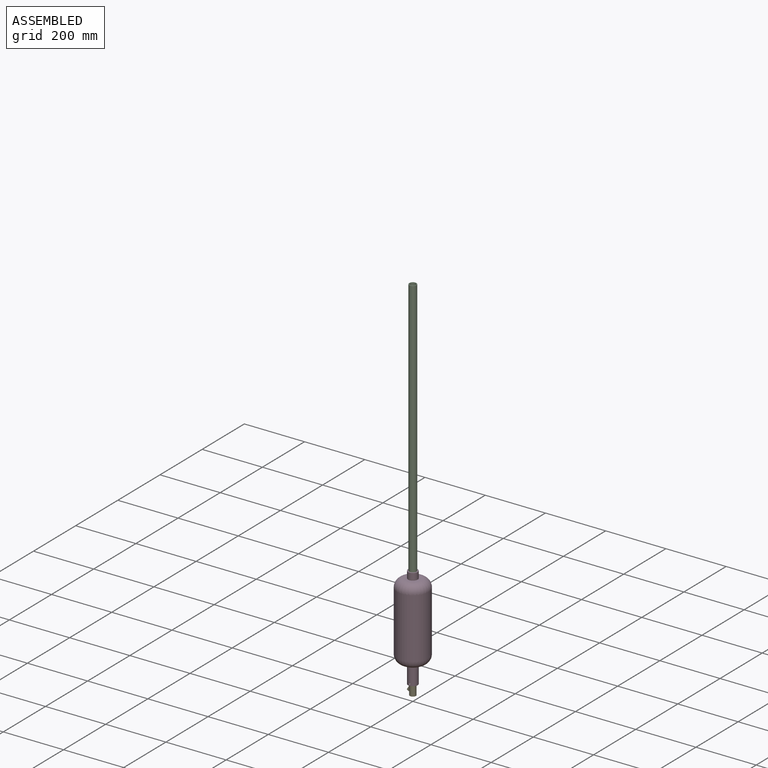
[diagram: assembled view]
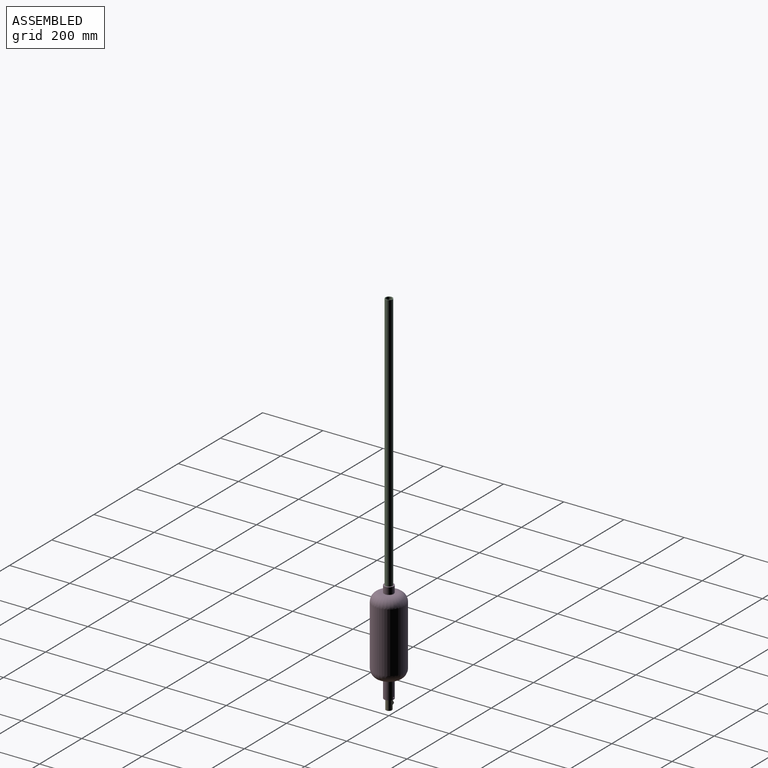
[diagram: assembled view, second angle]
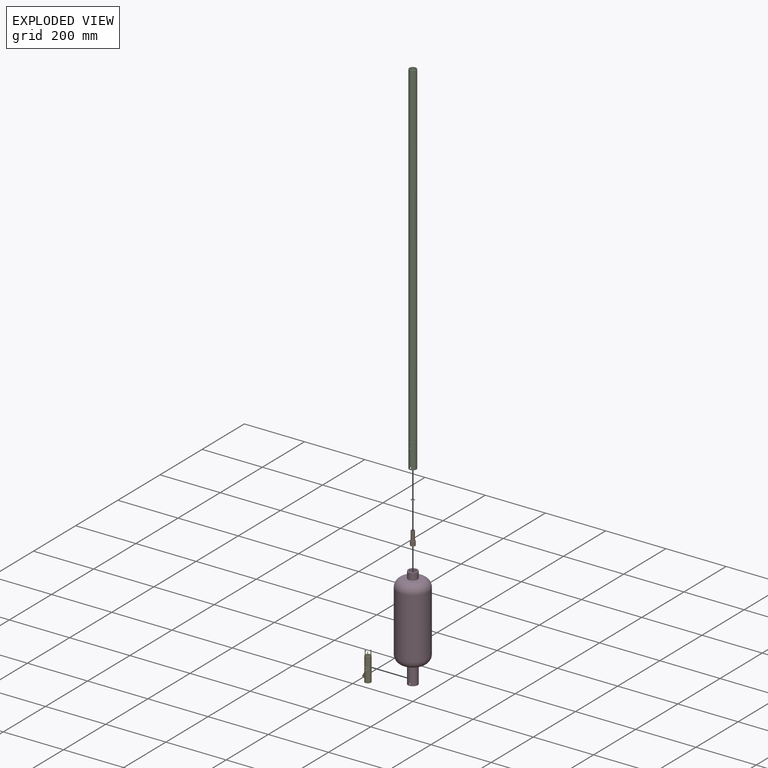
[diagram: exploded view]
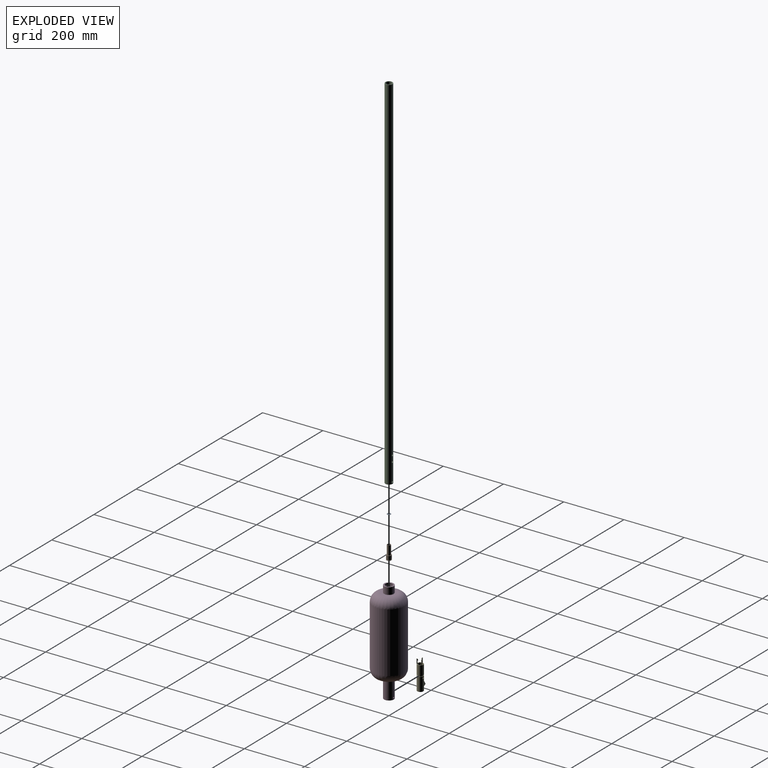
[diagram: exploded view, second angle]
ASSEMBLY  parts=5 mates=7
PART A: 4 faces, bbox 12x12x0.5 mm
  f0: cylinder r=6mm len=12mm, axis (0,0,1), area 18.8mm2, adj f1,f2
  f1: plane 12x12mm, normal (0,0,-1), area 110mm2, adj f0,f3
  f2: plane 12x12mm, normal (0,0,1), area 110mm2, adj f0,f3
  f3: cylinder r=1mm len=2mm, axis (0,0,-1), area 3.1mm2, adj f1,f2
PART B: 17 faces, bbox 16x16x45 mm
  f0: cylinder r=8mm len=16mm, axis (0,0,-1), area 598.2mm2, adj f2,f14
  f1: cylinder r=8mm len=16mm, axis (0,0,-1), area 100.5mm2, adj f3,f16
  f2: plane 16x16mm, normal (0,0,1), area 88mm2, adj f0,f7
  f3: plane 16x16mm, normal (0,0,-1), area 88mm2, adj f1,f4
  f4: cylinder r=6mm len=13mm, axis (0,0,-1), area 490.1mm2, adj f3,f5
  f5: plane 12x12mm, normal (0,0,-1), area 106mm2, adj f4,f10,f11,f12,f13
  f6: cylinder r=5mm len=30mm, axis (0,0,-1), area 942.5mm2, adj f8,f9
  f7: cylinder r=6mm len=30mm, axis (0,0,-1), area 1131mm2, adj f2,f8
  f8: plane 12x12mm, normal (0,0,1), area 34.6mm2, adj f6,f7
  f9: plane 10x10mm, normal (0,0,1), area 71.5mm2, adj f6,f10,f11,f12,f13
  f10: cylinder r=0.75mm len=2mm, axis (0,0,1), area 9.4mm2, adj f5,f9
  f11: cylinder r=0.75mm len=2mm, axis (0,0,1), area 9.4mm2, adj f5,f9
  f12: cylinder r=0.75mm len=2mm, axis (0,0,1), area 9.4mm2, adj f5,f9
  f13: cylinder r=0.75mm len=2mm, axis (0,0,1), area 9.4mm2, adj f5,f9
  f14: plane 16x16mm, normal (0,0,-1), area 38.2mm2, adj f0,f15
  f15: cylinder r=7.2mm len=14.4mm, axis (0,0,-1), area 49.8mm2, adj f14,f16
  f16: plane 16x16mm, normal (0,0,1), area 38.2mm2, adj f1,f15
PART C: 10 faces, bbox 24x24x1200 mm
  f0: plane 24x24mm, normal (0,0,-1), area 138.2mm2, adj f2,f3
  f1: plane 24x24mm, normal (0,0,1), area 138.2mm2, adj f2,f3
  f2: cylinder r=12mm len=1200mm, axis (0,0,1), area 90321mm2, adj f0,f1,f4,f5,f6,f7,f8,f9
  f3: cylinder r=10mm len=1200mm, axis (0,0,1), area 75240.9mm2, adj f0,f1,f4,f5,f6,f7,f8,f9
  f4: cylinder r=3mm len=6mm, axis (1,0,0), area 38.4mm2, adj f2,f3
  f5: cylinder r=3mm len=6mm, axis (1,0,0), area 38.4mm2, adj f2,f3
  f6: cylinder r=3mm len=6mm, axis (1,0,0), area 38.4mm2, adj f2,f3
  f7: cylinder r=3mm len=6mm, axis (1,0,0), area 38.4mm2, adj f2,f3
  f8: cylinder r=2.6mm len=5.2mm, axis (1,0,0), area 33.1mm2, adj f2,f3
  f9: cylinder r=2.6mm len=5.2mm, axis (1,0,0), area 33.1mm2, adj f2,f3
PART D: 26 faces, bbox 108.2x108.2x340 mm
  f0: cylinder r=12mm len=40mm, axis (0,0,-1), area 2973.3mm2, adj f2,f11,f12,f17
  f1: plane 32x32mm, normal (0,0,1), area 351.9mm2, adj f8,f10
  f2: plane 32x32mm, normal (0,0,-1), area 351.9mm2, adj f0,f9
  f3: plane 50x50mm, normal (0,0,-1), area 1159.2mm2, adj f4,f9
  f4: torus R=25mm, axis (0,0,1), area 11242.4mm2, adj f3,f7
  f5: plane 50x50mm, normal (0,0,1), area 1159.2mm2, adj f6,f10
  f6: torus R=25mm, axis (0,0,1), area 11242.4mm2, adj f5,f7
  f7: cylinder r=52mm len=200mm, axis (0,0,-1), area 65345.1mm2, adj f4,f6
  f8: cylinder r=12mm len=24mm, axis (0,0,-1), area 377mm2, adj f1,f13
  f9: cylinder r=16mm len=63mm, axis (0,0,-1), area 6290.7mm2, adj f2,f3,f11,f12
  f10: cylinder r=16mm len=32mm, axis (0,0,-1), area 2312.2mm2, adj f1,f5
  f11: cylinder r=2.6mm len=5.2mm, axis (1,0,0), area 65.9mm2, adj f0,f9
  f12: cylinder r=2.6mm len=5.2mm, axis (1,0,0), area 65.9mm2, adj f0,f9
  f13: plane 27.2x27.2mm, normal (0,0,-1), area 128.7mm2, adj f8,f15
  f14: plane 27.2x27.2mm, normal (0,0,1), area 128.7mm2, adj f15,f25
  f15: cylinder r=13.6mm len=27.2mm, axis (0,0,1), area 179.4mm2, adj f13,f14
  f16: plane 27.2x27.2mm, normal (0,0,-1), area 128.7mm2, adj f18,f21
  f17: plane 27.2x27.2mm, normal (0,0,1), area 128.7mm2, adj f0,f18
  f18: cylinder r=13.6mm len=27.2mm, axis (0,0,1), area 179.4mm2, adj f16,f17
  f19: torus R=25mm, axis (0,0,1), area 10095.5mm2, adj f20,f22
  f20: plane 50x50mm, normal (0,0,1), area 1511.1mm2, adj f19,f21
  f21: cylinder r=12mm len=24mm, axis (0,0,-1), area 1726.6mm2, adj f16,f20
  f22: cylinder r=50mm len=200mm, axis (0,0,-1), area 62831.9mm2, adj f19,f23
  f23: torus R=25mm, axis (0,0,1), area 10095.5mm2, adj f22,f24
  f24: plane 50x50mm, normal (0,0,-1), area 1511.1mm2, adj f23,f25
  f25: cylinder r=12mm len=24mm, axis (0,0,-1), area 1349.6mm2, adj f14,f24
PART E: 46 faces, bbox 26x20x95 mm
  f0: cylinder r=10mm len=45.8mm, axis (0,0,-1), area 2642mm2, adj f26,f27,f28,f30,f31,f32,f33,f41
  f1: plane 4x2.88mm, normal (-0.5,0,-0.87), area 9.4mm2, adj f29,f34,f36,f37,f38,f39
  f2: plane 16.38x5.41mm, normal (0,0,1), area 34.6mm2, adj f4,f6,f13,f24
  f3: plane 14.19x9.3mm, normal (0,0,1), area 34.6mm2, adj f4,f6,f18,f25
  f4: cylinder r=10mm len=47mm, axis (0,0,-1), area 2089.2mm2, adj f2,f3,f5,f11,f12,f13,f17,f18
  f5: plane 14.19x9.3mm, normal (0,0,1), area 34.6mm2, adj f4,f6,f12,f19
  f6: cylinder r=8mm len=38mm, axis (0,0,1), area 1449.3mm2, adj f2,f3,f5,f7,f8,f12,f13,f14
  f7: plane 16x16mm, normal (0,0,1), area 197.9mm2, adj f6,f42
  f8: plane 2.34x2.05mm, normal (0,0,-1), area 2.4mm2, adj f6,f9,f12,f13
  f9: cylinder r=6mm len=1.54mm, axis (0,0,1), area 1.6mm2, adj f8,f10,f12,f13
  f10: cone r=8mm half-angle=30deg, axis (0,0,1), area 4.9mm2, adj f9,f11,f12,f13
  f11: plane 2.51x2.36mm, normal (0,0,1), area 3.1mm2, adj f4,f10,f12,f13
  f12: plane 15x3.63mm, normal (-0.91,-0.42,0), area 36.5mm2, adj f4,f5,f6,f8,f9,f10,f11
  f13: plane 15x3.28mm, normal (0.82,0.57,0), area 36.5mm2, adj f2,f4,f6,f8,f9,f10,f11
  f14: plane 2.02x1.39mm, normal (0,0,-1), area 2.4mm2, adj f6,f15,f18,f19
  f15: cylinder r=6mm len=1.54mm, axis (0,0,1), area 1.6mm2, adj f14,f16,f18,f19
  f16: cone r=8mm half-angle=30deg, axis (0,0,1), area 4.9mm2, adj f15,f17,f18,f19
  f17: plane 2.03x1.74mm, normal (0,0,1), area 3.1mm2, adj f4,f16,f18,f19
  f18: plane 15x3.98mm, normal (0.09,1,0), area 36.5mm2, adj f3,f4,f6,f14,f15,f16,f17
  f19: plane 15x3.98mm, normal (0.09,-1,0), area 36.5mm2, adj f4,f5,f6,f14,f15,f16,f17
  f20: plane 2.34x2.05mm, normal (0,0,-1), area 2.4mm2, adj f6,f21,f24,f25
  f21: cylinder r=6mm len=1.54mm, axis (0,0,1), area 1.6mm2, adj f20,f22,f24,f25
  f22: cone r=8mm half-angle=30deg, axis (0,0,1), area 4.9mm2, adj f21,f23,f24,f25
  f23: plane 2.51x2.36mm, normal (0,0,1), area 3.1mm2, adj f4,f22,f24,f25
  f24: plane 15x3.28mm, normal (0.82,-0.57,0), area 36.5mm2, adj f2,f4,f6,f20,f21,f22,f23
  f25: plane 15x3.63mm, normal (-0.91,0.42,0), area 36.5mm2, adj f3,f4,f6,f20,f21,f22,f23
  f26: plane 20x20mm, normal (0,0,-1), area 314.2mm2, adj f0
  f27: plane 17.79x7.96mm, normal (0,-1,0), area 72mm2, adj f0,f30,f31,f33
  f28: plane 17.79x7.96mm, normal (0,1,0), area 72mm2, adj f0,f31,f32,f33
  f29: cylinder r=2mm len=23.65mm, axis (0.5,0,0.87), area 273.5mm2, adj f1,f33,f34,f35
  f30: plane 1.79x1.72mm, normal (0.87,0,-0.5), area 1.6mm2, adj f0,f27,f33
  f31: plane 13.79x12mm, normal (-0.87,0,0.5), area 158.4mm2, adj f0,f27,f28,f33
  f32: plane 1.79x1.72mm, normal (0.87,0,-0.5), area 1.6mm2, adj f0,f28,f33
  f33: plane 12x6.93mm, normal (-0.5,0,-0.87), area 77mm2, adj f0,f27,f28,f29,f30,f31,f32
  f34: plane 10.39x6mm, normal (0.87,0,-0.5), area 29.7mm2, adj f1,f29,f35,f42
  f35: plane 3x0.59mm, normal (-0.5,0,-0.87), area 1.4mm2, adj f29,f34
  f36: plane 10.69x6.52mm, normal (0,1,0), area 7.2mm2, adj f1,f37,f39,f40
  f37: plane 10.39x6mm, normal (0.87,0,-0.5), area 36mm2, adj f1,f36,f38,f40
  f38: plane 10.69x6.52mm, normal (0,-1,0), area 7.2mm2, adj f1,f37,f39,f40
  f39: plane 10.39x6mm, normal (-0.87,0,0.5), area 36mm2, adj f1,f36,f38,f40
  f40: plane 3x0.52mm, normal (-0.5,0,-0.87), area 1.8mm2, adj f36,f37,f38,f39
  f41: cylinder r=2.6mm len=20mm, axis (0,-1,0), area 321.1mm2, adj f0
  f42: cylinder r=1mm len=24.77mm, axis (0,0,1), area 144.6mm2, adj f7,f34
  f43: plane 20x20mm, normal (0,0,-1), area 97.7mm2, adj f4,f44
  f44: cylinder r=8.3mm len=16.6mm, axis (0,0,-1), area 114.7mm2, adj f43,f45
  f45: plane 20x20mm, normal (0,0,1), area 97.7mm2, adj f0,f44
PLACE A t=(0,0,-23)mm
PLACE B t=(0,0,-23)mm
PLACE C rot(axis=(0,0,1),90deg) t=(0,0,-16)mm
PLACE D rot(axis=(0,0,-1),90deg) t=(0,0,174)mm
PLACE E at identity fixed
MATE cylindrical C.f2 <-> D.f0  axis (0,0,1) through (0,0,-16)mm
MATE cylindrical E.f0 <-> C.f2  axis (0,0,-1) through (0,0,21.5)mm
MATE fastened B.f0 <-> A.f0  axis (0,0,-1) through (0,0,15)mm
MATE slider E.f41 <-> C.f8  axis (0,-1,0) through (0,0,-10)mm
MATE parallel E.f7 <-> B.f0  axis (0,0,1) through (0.08,0,2)mm
MATE slider E.f6 <-> B.f0  axis (0,0,1) through (0,0,21)mm
MATE cylindrical D.f11 <-> E.f41  axis (0,-1,0) through (0,-13.86,-10)mm
